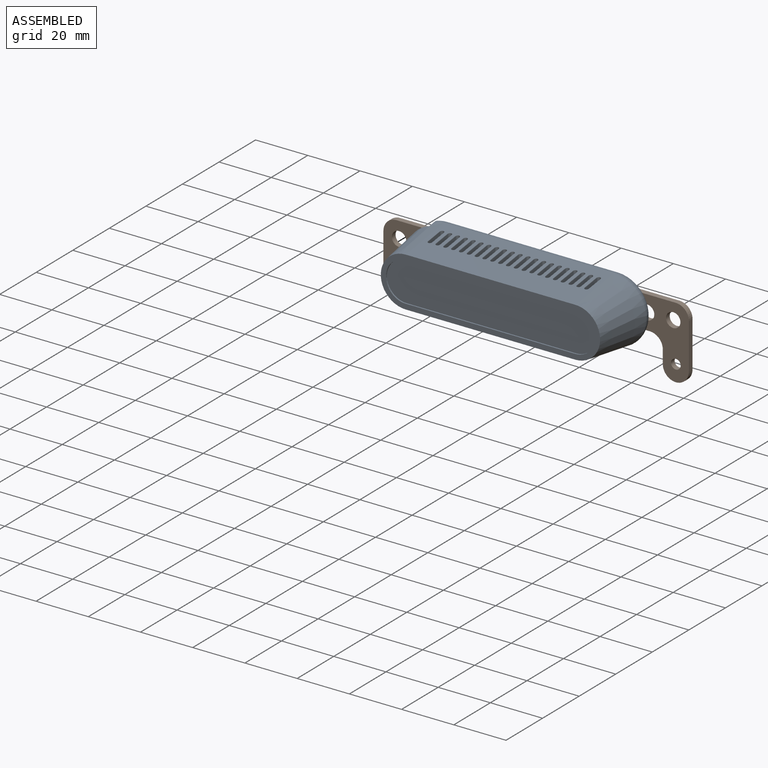
[diagram: assembled view]
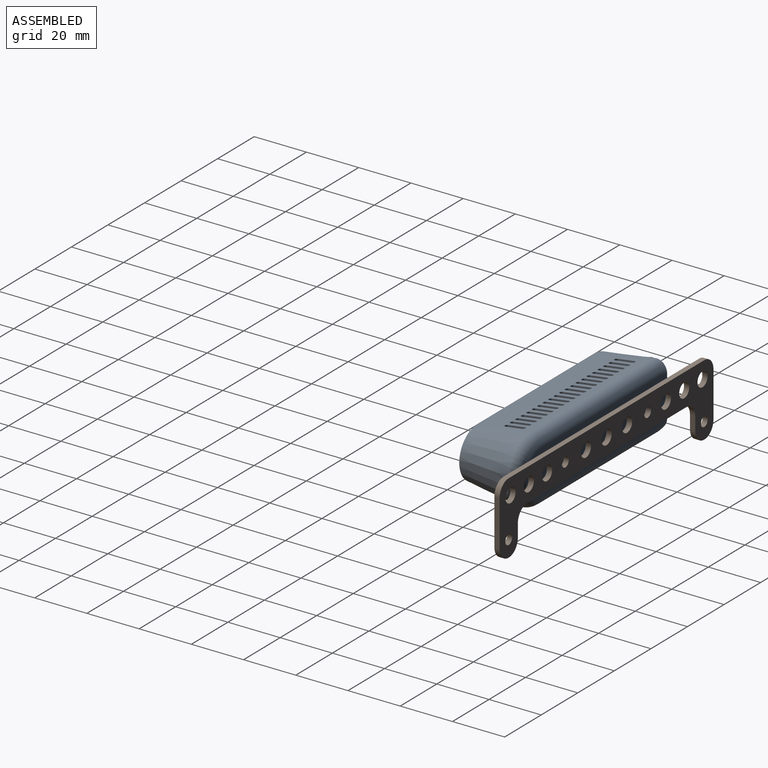
[diagram: assembled view, second angle]
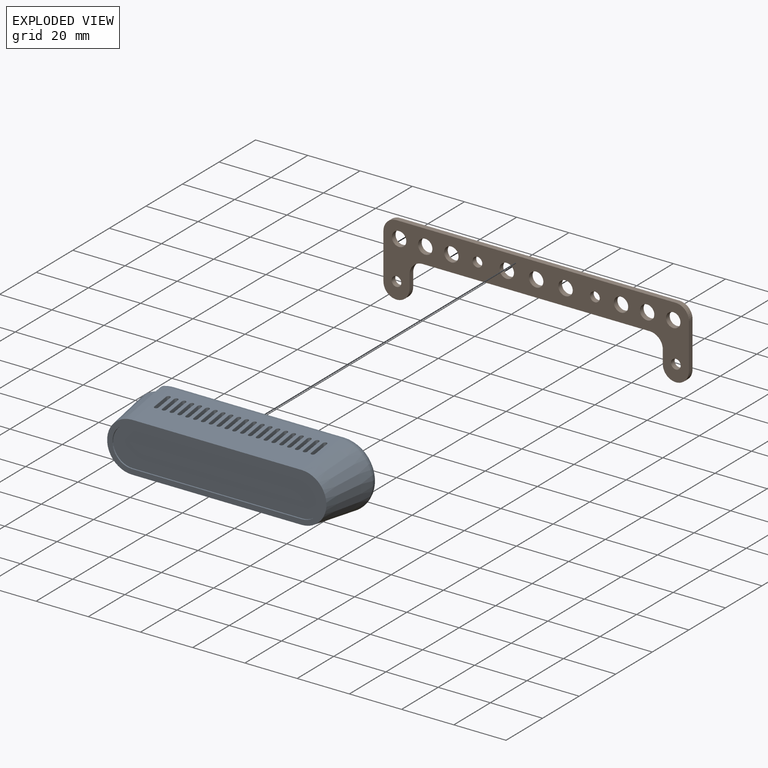
[diagram: exploded view]
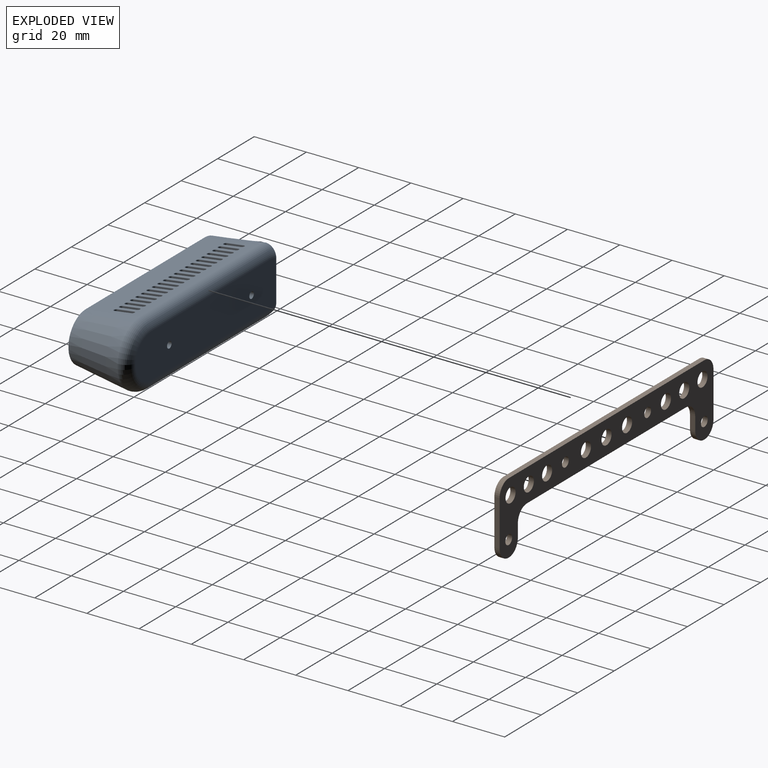
[diagram: exploded view, second angle]
ASSEMBLY  parts=2 mates=3
PART A: 211 faces, bbox 91x25x27.1 mm
  f0: cone r=9.5mm half-angle=8.1deg, axis (0,1,0), area 637.6mm2, adj f1,f2,f184,f185,f187,f209,f210
  f1: torus R=8.5mm, axis (0,-1,0), area 22.4mm2, adj f0,f183,f199,f209
  f2: torus R=8.5mm, axis (0,-1,0), area 22.4mm2, adj f0,f183,f197,f209
  f3: cylinder r=0.15mm len=6.46mm, axis (0,0.99,0.14), area 1.5mm2, adj f4,f5,f9,f185
  f4: torus R=0.9mm, axis (0,0.14,-0.99), area 0.6mm2, adj f3,f6,f8,f185
  f5: torus R=0.9mm, axis (0,0.14,-0.99), area 0.6mm2, adj f3,f6,f10,f185
  f6: cylinder r=0.15mm len=6.46mm, axis (0,-0.99,-0.14), area 1.5mm2, adj f4,f5,f7,f185
  f7: plane 6.7x2.75mm, normal (1,0,0), area 12mm2, adj f6,f8,f10,f11
  f8: cylinder r=0.75mm len=1.94mm, axis (0,-0.14,0.99), area 4.4mm2, adj f4,f7,f9,f11
  f9: plane 6.7x2.75mm, normal (-1,0,0), area 12mm2, adj f3,f8,f10,f11
  f10: cylinder r=0.75mm len=1.94mm, axis (0,-0.14,0.99), area 4.4mm2, adj f5,f7,f9,f11
  f11: plane 7.92x1.5mm, normal (0,-0.14,0.99), area 11.5mm2, adj f7,f8,f9,f10
  f12: cylinder r=0.15mm len=6.46mm, axis (0,0.99,0.14), area 1.5mm2, adj f13,f14,f18,f185
  f13: torus R=0.9mm, axis (0,0.14,-0.99), area 0.6mm2, adj f12,f15,f17,f185
  f14: torus R=0.9mm, axis (0,0.14,-0.99), area 0.6mm2, adj f12,f15,f19,f185
  f15: cylinder r=0.15mm len=6.46mm, axis (0,-0.99,-0.14), area 1.5mm2, adj f13,f14,f16,f185
  f16: plane 6.7x2.75mm, normal (1,0,0), area 12mm2, adj f15,f17,f19,f20
  f17: cylinder r=0.75mm len=1.94mm, axis (0,-0.14,0.99), area 4.4mm2, adj f13,f16,f18,f20
  f18: plane 6.7x2.75mm, normal (-1,0,0), area 12mm2, adj f12,f17,f19,f20
  f19: cylinder r=0.75mm len=1.94mm, axis (0,-0.14,0.99), area 4.4mm2, adj f14,f16,f18,f20
  f20: plane 7.92x1.5mm, normal (0,-0.14,0.99), area 11.5mm2, adj f16,f17,f18,f19
  f21: cylinder r=0.15mm len=6.46mm, axis (0,0.99,0.14), area 1.5mm2, adj f22,f23,f27,f185
  f22: torus R=0.9mm, axis (0,0.14,-0.99), area 0.6mm2, adj f21,f24,f26,f185
  f23: torus R=0.9mm, axis (0,0.14,-0.99), area 0.6mm2, adj f21,f24,f28,f185
  f24: cylinder r=0.15mm len=6.46mm, axis (0,-0.99,-0.14), area 1.5mm2, adj f22,f23,f25,f185
  f25: plane 6.7x2.75mm, normal (1,0,0), area 12mm2, adj f24,f26,f28,f29
  f26: cylinder r=0.75mm len=1.94mm, axis (0,-0.14,0.99), area 4.4mm2, adj f22,f25,f27,f29
  f27: plane 6.7x2.75mm, normal (-1,0,0), area 12mm2, adj f21,f26,f28,f29
  f28: cylinder r=0.75mm len=1.94mm, axis (0,-0.14,0.99), area 4.4mm2, adj f23,f25,f27,f29
  f29: plane 7.92x1.5mm, normal (0,-0.14,0.99), area 11.5mm2, adj f25,f26,f27,f28
  f30: cylinder r=0.15mm len=6.46mm, axis (0,0.99,0.14), area 1.5mm2, adj f31,f32,f36,f185
  f31: torus R=0.9mm, axis (0,0.14,-0.99), area 0.6mm2, adj f30,f33,f35,f185
  f32: torus R=0.9mm, axis (0,0.14,-0.99), area 0.6mm2, adj f30,f33,f37,f185
  f33: cylinder r=0.15mm len=6.46mm, axis (0,-0.99,-0.14), area 1.5mm2, adj f31,f32,f34,f185
  f34: plane 6.7x2.75mm, normal (1,0,0), area 12mm2, adj f33,f35,f37,f38
  f35: cylinder r=0.75mm len=1.94mm, axis (0,-0.14,0.99), area 4.4mm2, adj f31,f34,f36,f38
  f36: plane 6.7x2.75mm, normal (-1,0,0), area 12mm2, adj f30,f35,f37,f38
  f37: cylinder r=0.75mm len=1.94mm, axis (0,-0.14,0.99), area 4.4mm2, adj f32,f34,f36,f38
  f38: plane 7.92x1.5mm, normal (0,-0.14,0.99), area 11.5mm2, adj f34,f35,f36,f37
  f39: cylinder r=0.15mm len=6.46mm, axis (0,0.99,0.14), area 1.5mm2, adj f40,f41,f45,f185
  f40: torus R=0.9mm, axis (0,0.14,-0.99), area 0.6mm2, adj f39,f42,f44,f185
  f41: torus R=0.9mm, axis (0,0.14,-0.99), area 0.6mm2, adj f39,f42,f46,f185
  f42: cylinder r=0.15mm len=6.46mm, axis (0,-0.99,-0.14), area 1.5mm2, adj f40,f41,f43,f185
  f43: plane 6.7x2.75mm, normal (1,0,0), area 12mm2, adj f42,f44,f46,f47
  f44: cylinder r=0.75mm len=1.94mm, axis (0,-0.14,0.99), area 4.4mm2, adj f40,f43,f45,f47
  f45: plane 6.7x2.75mm, normal (-1,0,0), area 12mm2, adj f39,f44,f46,f47
  f46: cylinder r=0.75mm len=1.94mm, axis (0,-0.14,0.99), area 4.4mm2, adj f41,f43,f45,f47
  f47: plane 7.92x1.5mm, normal (0,-0.14,0.99), area 11.5mm2, adj f43,f44,f45,f46
  f48: cylinder r=0.15mm len=6.46mm, axis (0,0.99,0.14), area 1.5mm2, adj f49,f50,f54,f185
  f49: torus R=0.9mm, axis (0,0.14,-0.99), area 0.6mm2, adj f48,f51,f53,f185
  f50: torus R=0.9mm, axis (0,0.14,-0.99), area 0.6mm2, adj f48,f51,f55,f185
  f51: cylinder r=0.15mm len=6.46mm, axis (0,-0.99,-0.14), area 1.5mm2, adj f49,f50,f52,f185
  f52: plane 6.7x2.75mm, normal (1,0,0), area 12mm2, adj f51,f53,f55,f56
  f53: cylinder r=0.75mm len=1.94mm, axis (0,-0.14,0.99), area 4.4mm2, adj f49,f52,f54,f56
  f54: plane 6.7x2.75mm, normal (-1,0,0), area 12mm2, adj f48,f53,f55,f56
  f55: cylinder r=0.75mm len=1.94mm, axis (0,-0.14,0.99), area 4.4mm2, adj f50,f52,f54,f56
  f56: plane 7.92x1.5mm, normal (0,-0.14,0.99), area 11.5mm2, adj f52,f53,f54,f55
  f57: cylinder r=0.15mm len=6.46mm, axis (0,0.99,0.14), area 1.5mm2, adj f58,f59,f63,f185
  f58: torus R=0.9mm, axis (0,0.14,-0.99), area 0.6mm2, adj f57,f60,f62,f185
  f59: torus R=0.9mm, axis (0,0.14,-0.99), area 0.6mm2, adj f57,f60,f64,f185
  f60: cylinder r=0.15mm len=6.46mm, axis (0,-0.99,-0.14), area 1.5mm2, adj f58,f59,f61,f185
  f61: plane 6.7x2.75mm, normal (1,0,0), area 12mm2, adj f60,f62,f64,f65
  f62: cylinder r=0.75mm len=1.94mm, axis (0,-0.14,0.99), area 4.4mm2, adj f58,f61,f63,f65
  f63: plane 6.7x2.75mm, normal (-1,0,0), area 12mm2, adj f57,f62,f64,f65
  f64: cylinder r=0.75mm len=1.94mm, axis (0,-0.14,0.99), area 4.4mm2, adj f59,f61,f63,f65
  f65: plane 7.92x1.5mm, normal (0,-0.14,0.99), area 11.5mm2, adj f61,f62,f63,f64
  f66: cylinder r=0.15mm len=6.46mm, axis (0,0.99,0.14), area 1.5mm2, adj f67,f68,f72,f185
  f67: torus R=0.9mm, axis (0,0.14,-0.99), area 0.6mm2, adj f66,f69,f71,f185
  f68: torus R=0.9mm, axis (0,0.14,-0.99), area 0.6mm2, adj f66,f69,f73,f185
  f69: cylinder r=0.15mm len=6.46mm, axis (0,-0.99,-0.14), area 1.5mm2, adj f67,f68,f70,f185
  f70: plane 6.7x2.75mm, normal (1,0,0), area 12mm2, adj f69,f71,f73,f74
  f71: cylinder r=0.75mm len=1.94mm, axis (0,-0.14,0.99), area 4.4mm2, adj f67,f70,f72,f74
  f72: plane 6.7x2.75mm, normal (-1,0,0), area 12mm2, adj f66,f71,f73,f74
  f73: cylinder r=0.75mm len=1.94mm, axis (0,-0.14,0.99), area 4.4mm2, adj f68,f70,f72,f74
  f74: plane 7.92x1.5mm, normal (0,-0.14,0.99), area 11.5mm2, adj f70,f71,f72,f73
  f75: cylinder r=0.15mm len=6.46mm, axis (0,0.99,0.14), area 1.5mm2, adj f76,f77,f81,f185
  f76: torus R=0.9mm, axis (0,0.14,-0.99), area 0.6mm2, adj f75,f78,f80,f185
  f77: torus R=0.9mm, axis (0,0.14,-0.99), area 0.6mm2, adj f75,f78,f82,f185
  f78: cylinder r=0.15mm len=6.46mm, axis (0,-0.99,-0.14), area 1.5mm2, adj f76,f77,f79,f185
  f79: plane 6.7x2.75mm, normal (1,0,0), area 12mm2, adj f78,f80,f82,f83
  f80: cylinder r=0.75mm len=1.94mm, axis (0,-0.14,0.99), area 4.4mm2, adj f76,f79,f81,f83
  f81: plane 6.7x2.75mm, normal (-1,0,0), area 12mm2, adj f75,f80,f82,f83
  f82: cylinder r=0.75mm len=1.94mm, axis (0,-0.14,0.99), area 4.4mm2, adj f77,f79,f81,f83
  f83: plane 7.92x1.5mm, normal (0,-0.14,0.99), area 11.5mm2, adj f79,f80,f81,f82
  f84: cylinder r=0.15mm len=6.46mm, axis (0,0.99,0.14), area 1.5mm2, adj f85,f86,f90,f185
  f85: torus R=0.9mm, axis (0,0.14,-0.99), area 0.6mm2, adj f84,f87,f89,f185
  f86: torus R=0.9mm, axis (0,0.14,-0.99), area 0.6mm2, adj f84,f87,f91,f185
  f87: cylinder r=0.15mm len=6.46mm, axis (0,-0.99,-0.14), area 1.5mm2, adj f85,f86,f88,f185
  f88: plane 6.7x2.75mm, normal (1,0,0), area 12mm2, adj f87,f89,f91,f92
  f89: cylinder r=0.75mm len=1.94mm, axis (0,-0.14,0.99), area 4.4mm2, adj f85,f88,f90,f92
  f90: plane 6.7x2.75mm, normal (-1,0,0), area 12mm2, adj f84,f89,f91,f92
  f91: cylinder r=0.75mm len=1.94mm, axis (0,-0.14,0.99), area 4.4mm2, adj f86,f88,f90,f92
  f92: plane 7.92x1.5mm, normal (0,-0.14,0.99), area 11.5mm2, adj f88,f89,f90,f91
  f93: cylinder r=0.15mm len=6.46mm, axis (0,0.99,0.14), area 1.5mm2, adj f94,f95,f99,f185
  f94: torus R=0.9mm, axis (0,0.14,-0.99), area 0.6mm2, adj f93,f96,f98,f185
  f95: torus R=0.9mm, axis (0,0.14,-0.99), area 0.6mm2, adj f93,f96,f100,f185
  f96: cylinder r=0.15mm len=6.46mm, axis (0,-0.99,-0.14), area 1.5mm2, adj f94,f95,f97,f185
  f97: plane 6.7x2.75mm, normal (1,0,0), area 12mm2, adj f96,f98,f100,f101
  f98: cylinder r=0.75mm len=1.94mm, axis (0,-0.14,0.99), area 4.4mm2, adj f94,f97,f99,f101
  f99: plane 6.7x2.75mm, normal (-1,0,0), area 12mm2, adj f93,f98,f100,f101
  f100: cylinder r=0.75mm len=1.94mm, axis (0,-0.14,0.99), area 4.4mm2, adj f95,f97,f99,f101
  f101: plane 7.92x1.5mm, normal (0,-0.14,0.99), area 11.5mm2, adj f97,f98,f99,f100
  f102: cylinder r=0.15mm len=6.46mm, axis (0,0.99,0.14), area 1.5mm2, adj f103,f104,f108,f185
  f103: torus R=0.9mm, axis (0,0.14,-0.99), area 0.6mm2, adj f102,f105,f107,f185
  f104: torus R=0.9mm, axis (0,0.14,-0.99), area 0.6mm2, adj f102,f105,f109,f185
  f105: cylinder r=0.15mm len=6.46mm, axis (0,-0.99,-0.14), area 1.5mm2, adj f103,f104,f106,f185
  f106: plane 6.7x2.75mm, normal (1,0,0), area 12mm2, adj f105,f107,f109,f110
  f107: cylinder r=0.75mm len=1.94mm, axis (0,-0.14,0.99), area 4.4mm2, adj f103,f106,f108,f110
  f108: plane 6.7x2.75mm, normal (-1,0,0), area 12mm2, adj f102,f107,f109,f110
  f109: cylinder r=0.75mm len=1.94mm, axis (0,-0.14,0.99), area 4.4mm2, adj f104,f106,f108,f110
  f110: plane 7.92x1.5mm, normal (0,-0.14,0.99), area 11.5mm2, adj f106,f107,f108,f109
  f111: cylinder r=0.15mm len=6.46mm, axis (0,0.99,0.14), area 1.5mm2, adj f112,f113,f117,f185
  f112: torus R=0.9mm, axis (0,0.14,-0.99), area 0.6mm2, adj f111,f114,f116,f185
  f113: torus R=0.9mm, axis (0,0.14,-0.99), area 0.6mm2, adj f111,f114,f118,f185
  f114: cylinder r=0.15mm len=6.46mm, axis (0,-0.99,-0.14), area 1.5mm2, adj f112,f113,f115,f185
  f115: plane 6.7x2.75mm, normal (1,0,0), area 12mm2, adj f114,f116,f118,f119
  f116: cylinder r=0.75mm len=1.94mm, axis (0,-0.14,0.99), area 4.4mm2, adj f112,f115,f117,f119
  f117: plane 6.7x2.75mm, normal (-1,0,0), area 12mm2, adj f111,f116,f118,f119
  f118: cylinder r=0.75mm len=1.94mm, axis (0,-0.14,0.99), area 4.4mm2, adj f113,f115,f117,f119
  f119: plane 7.92x1.5mm, normal (0,-0.14,0.99), area 11.5mm2, adj f115,f116,f117,f118
  f120: cylinder r=0.15mm len=6.46mm, axis (0,0.99,0.14), area 1.5mm2, adj f121,f122,f126,f185
  f121: torus R=0.9mm, axis (0,0.14,-0.99), area 0.6mm2, adj f120,f123,f125,f185
  f122: torus R=0.9mm, axis (0,0.14,-0.99), area 0.6mm2, adj f120,f123,f127,f185
  f123: cylinder r=0.15mm len=6.46mm, axis (0,-0.99,-0.14), area 1.5mm2, adj f121,f122,f124,f185
  f124: plane 6.7x2.75mm, normal (1,0,0), area 12mm2, adj f123,f125,f127,f128
  f125: cylinder r=0.75mm len=1.94mm, axis (0,-0.14,0.99), area 4.4mm2, adj f121,f124,f126,f128
  f126: plane 6.7x2.75mm, normal (-1,0,0), area 12mm2, adj f120,f125,f127,f128
  f127: cylinder r=0.75mm len=1.94mm, axis (0,-0.14,0.99), area 4.4mm2, adj f122,f124,f126,f128
  f128: plane 7.92x1.5mm, normal (0,-0.14,0.99), area 11.5mm2, adj f124,f125,f126,f127
  f129: cylinder r=0.15mm len=6.46mm, axis (0,0.99,0.14), area 1.5mm2, adj f130,f131,f135,f185
  f130: torus R=0.9mm, axis (0,0.14,-0.99), area 0.6mm2, adj f129,f132,f134,f185
  f131: torus R=0.9mm, axis (0,0.14,-0.99), area 0.6mm2, adj f129,f132,f136,f185
  f132: cylinder r=0.15mm len=6.46mm, axis (0,-0.99,-0.14), area 1.5mm2, adj f130,f131,f133,f185
  f133: plane 6.7x2.75mm, normal (1,0,0), area 12mm2, adj f132,f134,f136,f137
  f134: cylinder r=0.75mm len=1.94mm, axis (0,-0.14,0.99), area 4.4mm2, adj f130,f133,f135,f137
  f135: plane 6.7x2.75mm, normal (-1,0,0), area 12mm2, adj f129,f134,f136,f137
  f136: cylinder r=0.75mm len=1.94mm, axis (0,-0.14,0.99), area 4.4mm2, adj f131,f133,f135,f137
  f137: plane 7.92x1.5mm, normal (0,-0.14,0.99), area 11.5mm2, adj f133,f134,f135,f136
  f138: cylinder r=0.15mm len=6.46mm, axis (0,0.99,0.14), area 1.5mm2, adj f139,f140,f144,f185
  f139: torus R=0.9mm, axis (0,0.14,-0.99), area 0.6mm2, adj f138,f141,f143,f185
  f140: torus R=0.9mm, axis (0,0.14,-0.99), area 0.6mm2, adj f138,f141,f145,f185
  f141: cylinder r=0.15mm len=6.46mm, axis (0,-0.99,-0.14), area 1.5mm2, adj f139,f140,f142,f185
  f142: plane 6.7x2.75mm, normal (1,0,0), area 12mm2, adj f141,f143,f145,f146
  f143: cylinder r=0.75mm len=1.94mm, axis (0,-0.14,0.99), area 4.4mm2, adj f139,f142,f144,f146
  f144: plane 6.7x2.75mm, normal (-1,0,0), area 12mm2, adj f138,f143,f145,f146
  f145: cylinder r=0.75mm len=1.94mm, axis (0,-0.14,0.99), area 4.4mm2, adj f140,f142,f144,f146
  f146: plane 7.92x1.5mm, normal (0,-0.14,0.99), area 11.5mm2, adj f142,f143,f144,f145
  f147: cylinder r=0.15mm len=6.46mm, axis (0,0.99,0.14), area 1.5mm2, adj f148,f149,f153,f185
  f148: torus R=0.9mm, axis (0,0.14,-0.99), area 0.6mm2, adj f147,f150,f152,f185
  f149: torus R=0.9mm, axis (0,0.14,-0.99), area 0.6mm2, adj f147,f150,f154,f185
  f150: cylinder r=0.15mm len=6.46mm, axis (0,-0.99,-0.14), area 1.5mm2, adj f148,f149,f151,f185
  f151: plane 6.7x2.75mm, normal (1,0,0), area 12mm2, adj f150,f152,f154,f155
  f152: cylinder r=0.75mm len=1.94mm, axis (0,-0.14,0.99), area 4.4mm2, adj f148,f151,f153,f155
  f153: plane 6.7x2.75mm, normal (-1,0,0), area 12mm2, adj f147,f152,f154,f155
  f154: cylinder r=0.75mm len=1.94mm, axis (0,-0.14,0.99), area 4.4mm2, adj f149,f151,f153,f155
  f155: plane 7.92x1.5mm, normal (0,-0.14,0.99), area 11.5mm2, adj f151,f152,f153,f154
  f156: cylinder r=0.15mm len=6.46mm, axis (0,0.99,0.14), area 1.5mm2, adj f157,f158,f162,f185
  f157: torus R=0.9mm, axis (0,0.14,-0.99), area 0.6mm2, adj f156,f159,f161,f185
  f158: torus R=0.9mm, axis (0,0.14,-0.99), area 0.6mm2, adj f156,f159,f163,f185
  f159: cylinder r=0.15mm len=6.46mm, axis (0,-0.99,-0.14), area 1.5mm2, adj f157,f158,f160,f185
  f160: plane 6.7x2.75mm, normal (1,0,0), area 12mm2, adj f159,f161,f163,f164
  f161: cylinder r=0.75mm len=1.94mm, axis (0,-0.14,0.99), area 4.4mm2, adj f157,f160,f162,f164
  f162: plane 6.7x2.75mm, normal (-1,0,0), area 12mm2, adj f156,f161,f163,f164
  f163: cylinder r=0.75mm len=1.94mm, axis (0,-0.14,0.99), area 4.4mm2, adj f158,f160,f162,f164
  f164: plane 7.92x1.5mm, normal (0,-0.14,0.99), area 11.5mm2, adj f160,f161,f162,f163
  f165: cylinder r=0.15mm len=6.46mm, axis (0,0.99,0.14), area 1.5mm2, adj f166,f167,f171,f185
  f166: torus R=0.9mm, axis (0,0.14,-0.99), area 0.6mm2, adj f165,f168,f170,f185
  f167: torus R=0.9mm, axis (0,0.14,-0.99), area 0.6mm2, adj f165,f168,f172,f185
  f168: cylinder r=0.15mm len=6.46mm, axis (0,-0.99,-0.14), area 1.5mm2, adj f166,f167,f169,f185
  f169: plane 6.7x2.75mm, normal (1,0,0), area 12mm2, adj f168,f170,f172,f173
  f170: cylinder r=0.75mm len=1.94mm, axis (0,-0.14,0.99), area 4.4mm2, adj f166,f169,f171,f173
  f171: plane 6.7x2.75mm, normal (-1,0,0), area 12mm2, adj f165,f170,f172,f173
  f172: cylinder r=0.75mm len=1.94mm, axis (0,-0.14,0.99), area 4.4mm2, adj f167,f169,f171,f173
  f173: plane 7.92x1.5mm, normal (0,-0.14,0.99), area 11.5mm2, adj f169,f170,f171,f172
  f174: cylinder r=0.15mm len=6.46mm, axis (0,0.99,0.14), area 1.5mm2, adj f175,f176,f180,f185
  f175: torus R=0.9mm, axis (0,0.14,-0.99), area 0.6mm2, adj f174,f177,f179,f185
  f176: torus R=0.9mm, axis (0,0.14,-0.99), area 0.6mm2, adj f174,f177,f181,f185
  f177: cylinder r=0.15mm len=6.46mm, axis (0,-0.99,-0.14), area 1.5mm2, adj f175,f176,f178,f185
  f178: plane 6.7x2.75mm, normal (1,0,0), area 12mm2, adj f177,f179,f181,f182
  f179: cylinder r=0.75mm len=1.94mm, axis (0,-0.14,0.99), area 4.4mm2, adj f175,f178,f180,f182
  f180: plane 6.7x2.75mm, normal (-1,0,0), area 12mm2, adj f174,f179,f181,f182
  f181: cylinder r=0.75mm len=1.94mm, axis (0,-0.14,0.99), area 4.4mm2, adj f176,f178,f180,f182
  f182: plane 7.92x1.5mm, normal (0,-0.14,0.99), area 11.5mm2, adj f178,f179,f180,f181
  f183: plane 77x17mm, normal (0,1,0), area 1266.4mm2, adj f1,f2,f194,f196,f197,f198,f199,f209
  f184: plane 84x19mm, normal (0,-1,0), area 366.8mm2, adj f0,f185,f186,f187,f188,f189,f190,f191
  f185: plane 65x21mm, normal (0,-0.14,0.99), area 1079.7mm2, adj f0,f3,f4,f5,f6,f12,f13,f14
  f186: cone r=9.5mm half-angle=8.1deg, axis (0,1,0), area 733.1mm2, adj f184,f185,f187,f198
  f187: plane 65x21mm, normal (0,-0.14,-0.99), area 1378.9mm2, adj f0,f184,f186,f199
  f188: plane 65x0.5mm, normal (0,0,-1), area 32.5mm2, adj f184,f189,f191,f192
  f189: cylinder r=7.5mm len=15mm, axis (0,-1,0), area 11.8mm2, adj f184,f188,f190,f192
  f190: plane 65x0.5mm, normal (0,0,1), area 32.5mm2, adj f184,f189,f191,f192
  f191: cylinder r=7.5mm len=15mm, axis (0,-1,0), area 11.8mm2, adj f184,f188,f190,f192
  f192: plane 80x15mm, normal (0,-1,0), area 1151.7mm2, adj f188,f189,f190,f191
  f193: cone r=0mm half-angle=59deg, axis (0,1,0), area 5.7mm2, adj f194
  f194: cylinder r=1.25mm len=9.5mm, axis (0,1,0), area 74.6mm2, adj f183,f193
  f195: cone r=0mm half-angle=59deg, axis (0,1,0), area 5.7mm2, adj f196
  f196: cylinder r=1.25mm len=9.5mm, axis (0,1,0), area 74.6mm2, adj f183,f195
  f197: cylinder r=4mm len=65mm, axis (1,0,0), area 408.4mm2, adj f2,f183,f185,f198
  f198: torus R=8.5mm, axis (0,-1,0), area 218mm2, adj f183,f186,f197,f199
  f199: cylinder r=4mm len=65mm, axis (-1,0,0), area 408.4mm2, adj f1,f183,f187,f198
  f200: plane 6.7x2.75mm, normal (1,0,0), area 12mm2, adj f201,f203,f204,f208
  f201: cylinder r=0.75mm len=1.94mm, axis (0,-0.14,0.99), area 4.4mm2, adj f200,f202,f204,f206
  f202: plane 6.7x2.75mm, normal (-1,0,0), area 12mm2, adj f201,f203,f204,f205
  f203: cylinder r=0.75mm len=1.94mm, axis (0,-0.14,0.99), area 4.4mm2, adj f200,f202,f204,f207
  f204: plane 7.92x1.5mm, normal (0,-0.14,0.99), area 11.5mm2, adj f200,f201,f202,f203
  f205: cylinder r=0.15mm len=6.46mm, axis (0,0.99,0.14), area 1.5mm2, adj f185,f202,f206,f207
  f206: torus R=0.9mm, axis (0,0.14,-0.99), area 0.6mm2, adj f185,f201,f205,f208
  f207: torus R=0.9mm, axis (0,0.14,-0.99), area 0.6mm2, adj f185,f203,f205,f208
  f208: cylinder r=0.15mm len=6.46mm, axis (0,-0.99,-0.14), area 1.5mm2, adj f185,f200,f206,f207
  f209: plane 24.01x7.01mm, normal (-1,0,0), area 159.4mm2, adj f0,f1,f2,f183,f210
  f210: plane 23.11x8.57mm, normal (0,1,0), area 145.6mm2, adj f0,f209
PART B: 27 faces, bbox 117x2x27.5 mm
  f0: plane 17.5x2mm, normal (-1,0,0), area 35mm2, adj f6,f7,f21,f26
  f1: plane 107x2mm, normal (0,0,-1), area 214mm2, adj f6,f7,f21,f22
  f2: plane 17.5x2mm, normal (1,0,0), area 35mm2, adj f6,f7,f22,f23
  f3: plane 5x2mm, normal (-1,0,0), area 10mm2, adj f6,f7,f23,f24
  f4: plane 87x2mm, normal (0,0,1), area 174mm2, adj f6,f7,f24,f25
  f5: plane 5x2mm, normal (1,0,0), area 10mm2, adj f6,f7,f25,f26
  f6: plane 117x27.5mm, normal (0,-1,0), area 1484.2mm2, adj f0,f1,f2,f3,f4,f5,f8,f9
  f7: plane 117x27.5mm, normal (0,1,0), area 1484.2mm2, adj f0,f1,f2,f3,f4,f5,f8,f9
  f8: cylinder r=1.85mm len=3.7mm, axis (0,1,0), area 23.2mm2, adj f6,f7
  f9: cylinder r=1.85mm len=3.7mm, axis (0,1,0), area 23.2mm2, adj f6,f7
  f10: cylinder r=1.85mm len=3.7mm, axis (0,1,0), area 23.2mm2, adj f6,f7
  f11: cylinder r=1.85mm len=3.7mm, axis (0,1,0), area 23.2mm2, adj f6,f7
  f12: cylinder r=2.75mm len=5.5mm, axis (0,1,0), area 34.6mm2, adj f6,f7
  f13: cylinder r=2.75mm len=5.5mm, axis (0,1,0), area 34.6mm2, adj f6,f7
  f14: cylinder r=2.75mm len=5.5mm, axis (0,1,0), area 34.6mm2, adj f6,f7
  f15: cylinder r=2.75mm len=5.5mm, axis (0,1,0), area 34.6mm2, adj f6,f7
  f16: cylinder r=2.75mm len=5.5mm, axis (0,1,0), area 34.6mm2, adj f6,f7
  f17: cylinder r=2.75mm len=5.5mm, axis (0,1,0), area 34.6mm2, adj f6,f7
  f18: cylinder r=2.75mm len=5.5mm, axis (0,1,0), area 34.6mm2, adj f6,f7
  f19: cylinder r=2.75mm len=5.5mm, axis (0,1,0), area 34.6mm2, adj f6,f7
  f20: cylinder r=2.75mm len=5.5mm, axis (0,1,0), area 34.6mm2, adj f6,f7
  f21: cylinder r=5mm len=5mm, axis (0,1,0), area 15.7mm2, adj f0,f1,f6,f7
  f22: cylinder r=5mm len=5mm, axis (0,-1,0), area 15.7mm2, adj f1,f2,f6,f7
  f23: cylinder r=5mm len=10mm, axis (0,1,0), area 31.4mm2, adj f2,f3,f6,f7
  f24: cylinder r=5mm len=5mm, axis (0,-1,0), area 15.7mm2, adj f3,f4,f6,f7
  f25: cylinder r=5mm len=5mm, axis (0,1,0), area 15.7mm2, adj f4,f5,f6,f7
  f26: cylinder r=5mm len=10mm, axis (0,1,0), area 31.4mm2, adj f0,f5,f6,f7
PLACE A at identity fixed
PLACE B rot(axis=(1,0,0),180deg) t=(0,25,0)mm
MATE cylindrical B.f11 <-> A.f193  axis (0,-1,0) through (22.5,25,0)mm
MATE planar B.f12 <-> A.f195  axis (0,-1,0) through (-42.5,25,0)mm
MATE cylindrical B.f9 <-> A.f195  axis (0,-1,0) through (-22.5,26,0)mm
